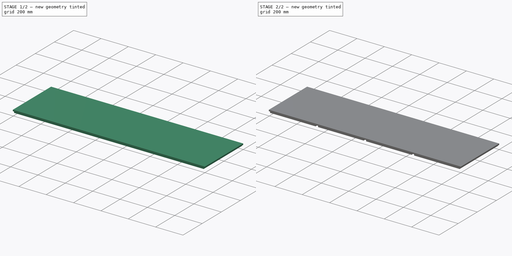
[diagram: build sequence overview — one tinted view per stage of 2, left to right]
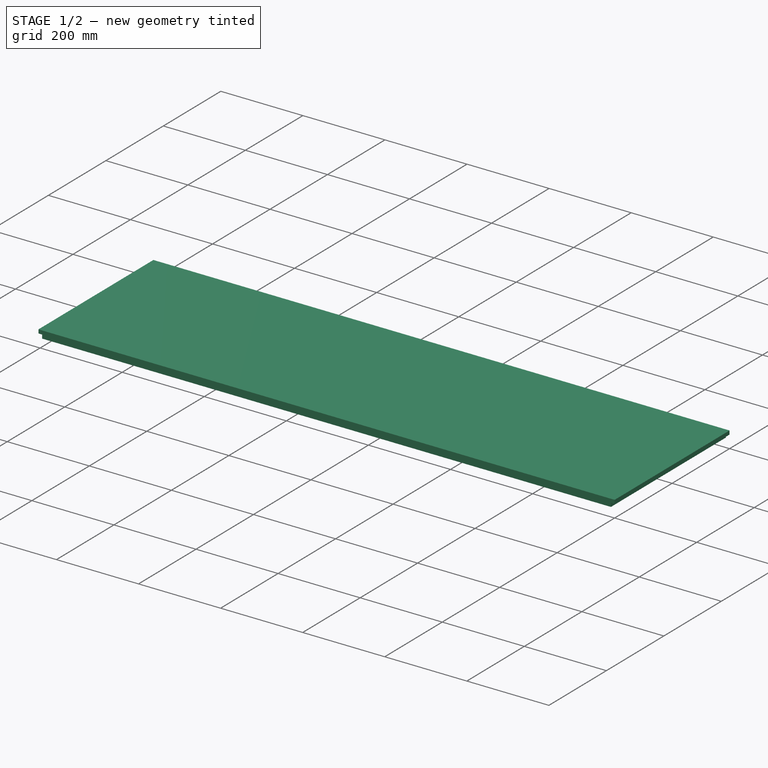
[diagram: stage 1 of 2 — iso view after this stage's code; geometry added in this stage tinted green]
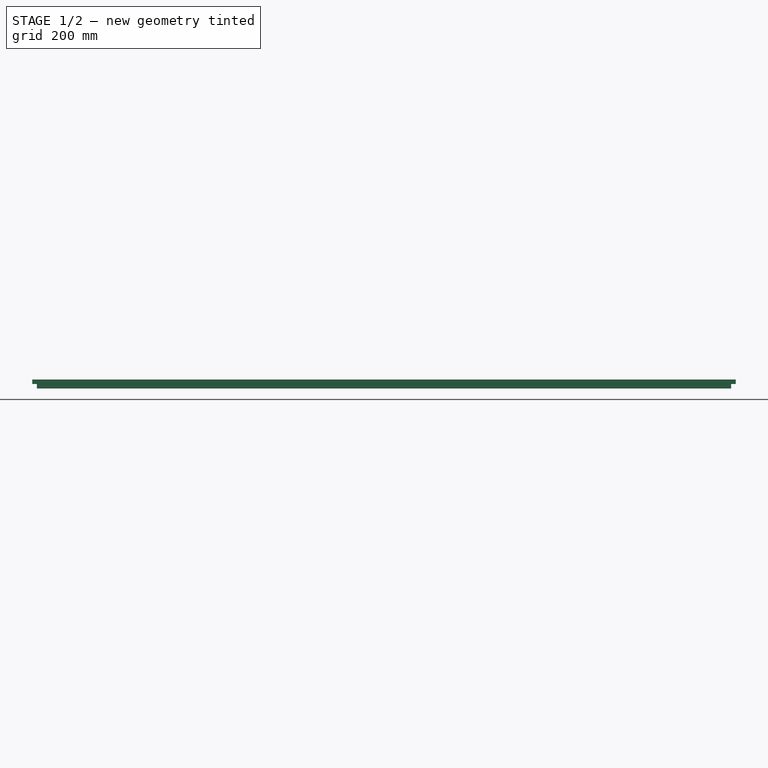
[diagram: stage 1 of 2 — front view after this stage's code; geometry added in this stage tinted green]
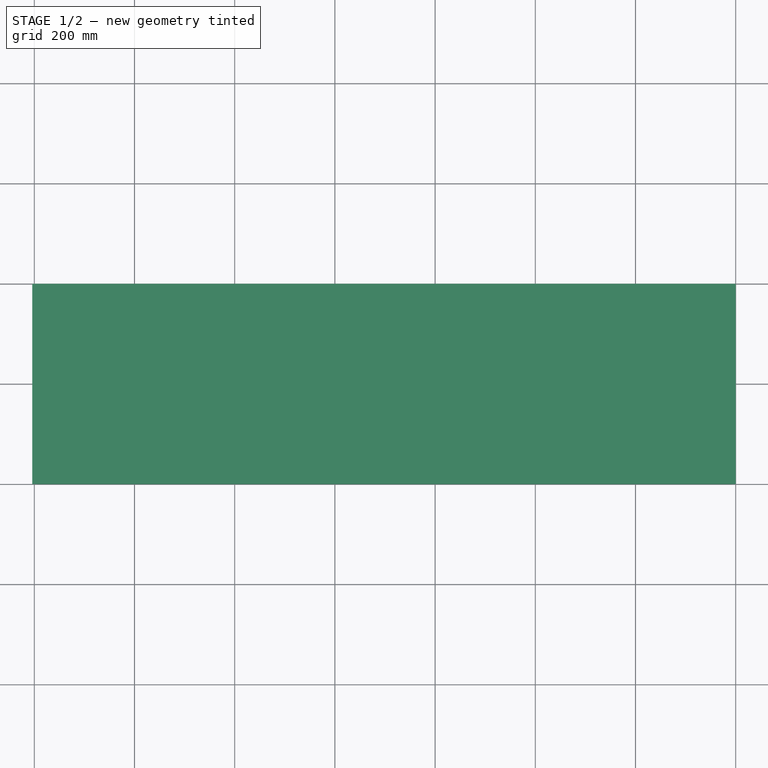
[diagram: stage 1 of 2 — top view after this stage's code; geometry added in this stage tinted green]
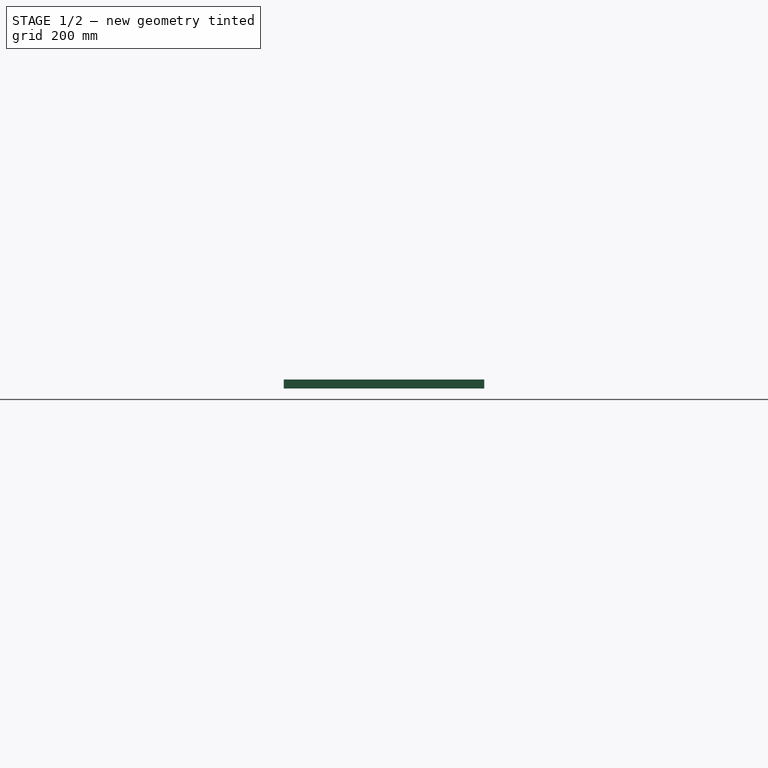
[diagram: stage 1 of 2 — right view after this stage's code; geometry added in this stage tinted green]
FCSTD DOCUMENT  (FreeCAD 0.18R4 (GitTag))
Label: vertical
License: All rights reserved
LicenseURL: http://en.wikipedia.org/wiki/All_rights_reserved
objects: Sketcher::SketchObject×3, PartDesign::Pocket×2, PartDesign::Pad×1, PartDesign::Body×1
note: 10 computed .brp shape members not serialized (recipe doc carries the construction recipe); baked Part::Feature solids carry a one-line shape summary decoded from their .brp

FEATURE [Sketcher::SketchObject] Sketch
  MapMode = 5
  Support = -> [XY_Plane]
  sketch-geometry (4):
    g0: LineSegment StartX=0 StartY=0 StartZ=0 EndX=-1404 EndY=0 EndZ=0
    g1: LineSegment StartX=-1404 StartY=0 StartZ=0 EndX=-1404 EndY=400 EndZ=0
    g2: LineSegment StartX=-1404 StartY=400 StartZ=0 EndX=0 EndY=400 EndZ=0
    g3: LineSegment StartX=0 StartY=400 StartZ=0 EndX=0 EndY=0 EndZ=0
  constraints (11):
    c: Coincident(g0,g1)
    c: Coincident(g1,g2)
    c: Coincident(g2,g3)
    c: Coincident(g3,g0)
    c: Horizontal(g0)
    c: Horizontal(g2)
    c: Vertical(g1)
    c: Vertical(g3)
    c: Coincident(g0,g-1)
    c: DistanceY(g3,g3) = 400
    c: DistanceX(g0,g0) = 1404
FEATURE [PartDesign::Pad] Pad
  Length = 18
  Length2 = 100
  Profile = -> Sketch
  Type = 0
FEATURE [Sketcher::SketchObject] Sketch001
  MapMode = 5
  Support = -> [XY_Plane]
  sketch-geometry (8):
    g0: LineSegment StartX=0 StartY=0 StartZ=0 EndX=-9 EndY=0 EndZ=0
    g1: LineSegment StartX=-9 StartY=0 StartZ=0 EndX=-9 EndY=400 EndZ=0
    g2: LineSegment StartX=-9 StartY=400 StartZ=0 EndX=0 EndY=400 EndZ=0
    g3: LineSegment StartX=0 StartY=400 StartZ=0 EndX=0 EndY=0 EndZ=0
    g4: LineSegment StartX=-1395 StartY=0 StartZ=0 EndX=-1404 EndY=0 EndZ=0
    g5: LineSegment StartX=-1404 StartY=0 StartZ=0 EndX=-1404 EndY=400 EndZ=0
    g6: LineSegment StartX=-1404 StartY=400 StartZ=0 EndX=-1395 EndY=400 EndZ=0
    g7: LineSegment StartX=-1395 StartY=400 StartZ=0 EndX=-1395 EndY=0 EndZ=0
  constraints (23):
    c: Coincident(g0,g1)
    c: Coincident(g1,g2)
    c: Coincident(g2,g3)
    c: Coincident(g3,g0)
    c: Horizontal(g0)
    c: Horizontal(g2)
    c: Vertical(g1)
    c: Vertical(g3)
    c: Coincident(g4,g5)
    c: Coincident(g5,g6)
    c: Coincident(g6,g7)
    c: Coincident(g7,g4)
    c: Horizontal(g4)
    c: Horizontal(g6)
    c: Vertical(g5)
    c: Vertical(g7)
    c: Coincident(g0,g-1)
    c: DistanceX(g0,g0) = 9
    c: DistanceY(g3,g3) = 400
    c: PointOnObject(g4,g-1)
    c: DistanceX(g4,g4) = 9
    c: DistanceY(g5,g5) = 400
    c: DistanceX(g4,g0) = 1404
FEATURE [PartDesign::Pocket] Pocket
  BaseFeature = -> Pad
  Length = 9
  Length2 = 100
  Profile = -> Sketch001
  Reversed = true
  Type = 0
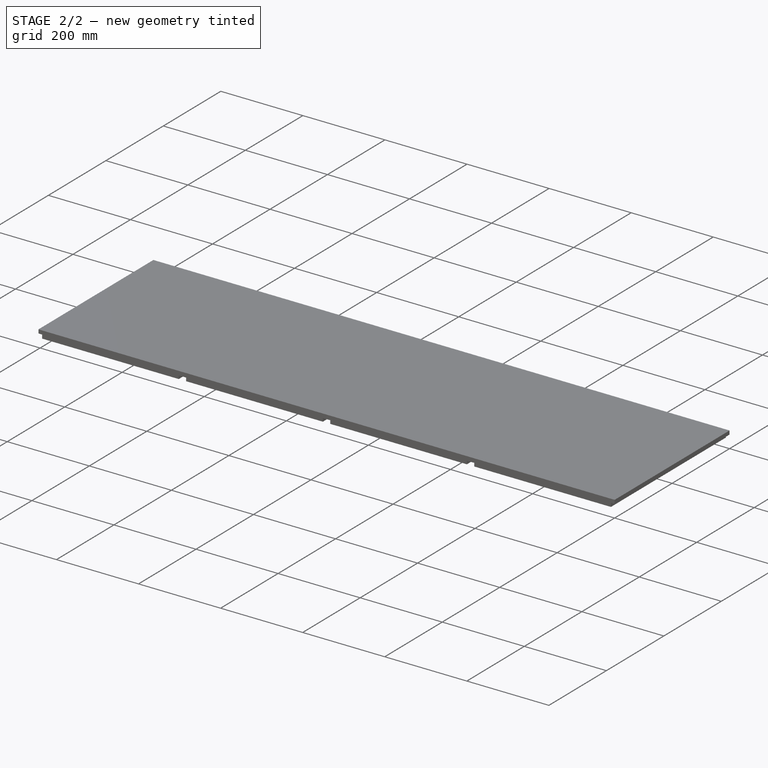
[diagram: stage 2 of 2 — iso view after this stage's code; geometry added in this stage tinted green]
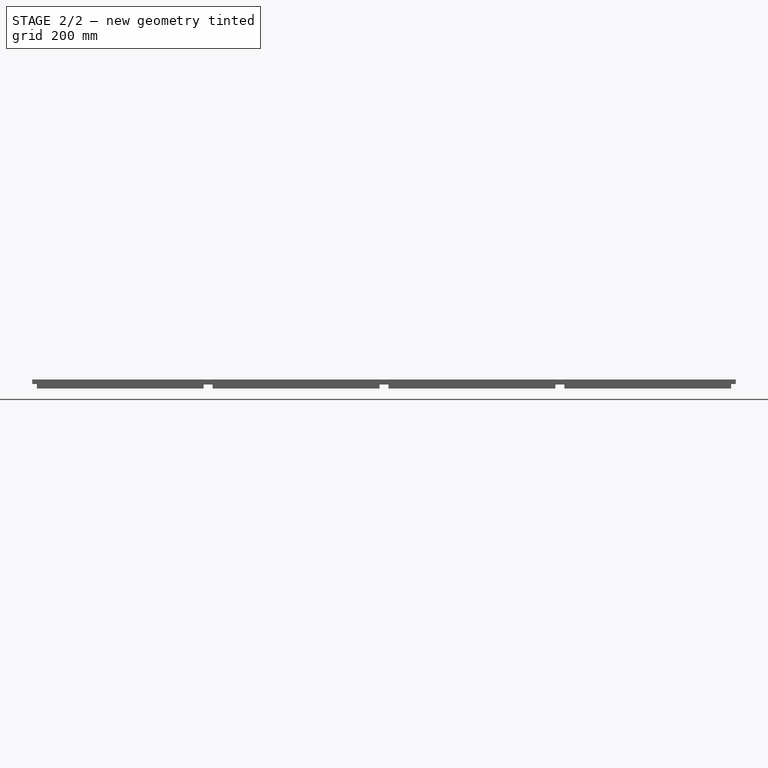
[diagram: stage 2 of 2 — front view after this stage's code; geometry added in this stage tinted green]
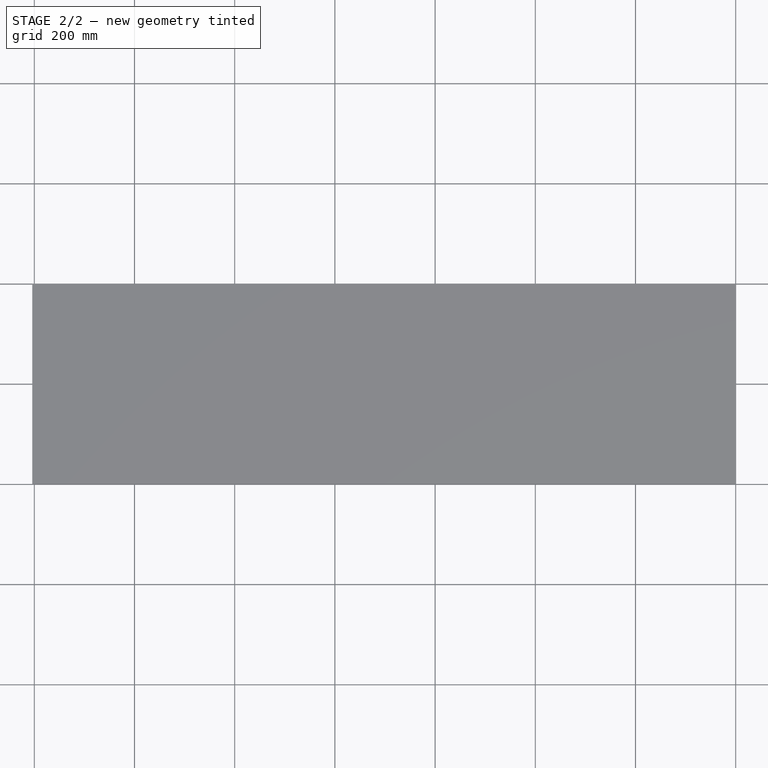
[diagram: stage 2 of 2 — top view after this stage's code; geometry added in this stage tinted green]
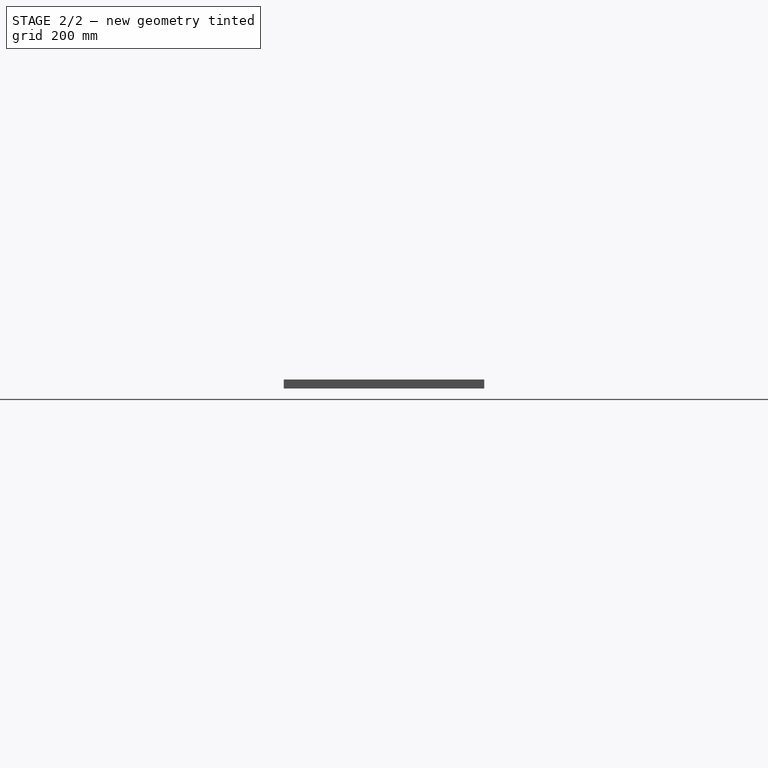
[diagram: stage 2 of 2 — right view after this stage's code; geometry added in this stage tinted green]
FEATURE [Sketcher::SketchObject] Sketch002
  MapMode = 5
  Placement = pos=(0,0,0) rot=(1,0,0;3.14159rad)
  Support = -> [Pocket]
  sketch-geometry (12):
    g0: LineSegment StartX=-342 StartY=0 StartZ=0 EndX=-360 EndY=0 EndZ=0
    g1: LineSegment StartX=-360 StartY=0 StartZ=0 EndX=-360 EndY=-400 EndZ=0
    g2: LineSegment StartX=-360 StartY=-400 StartZ=0 EndX=-342 EndY=-400 EndZ=0
    g3: LineSegment StartX=-342 StartY=-400 StartZ=0 EndX=-342 EndY=0 EndZ=0
    g4: LineSegment StartX=-693 StartY=0 StartZ=0 EndX=-711 EndY=0 EndZ=0
    g5: LineSegment StartX=-711 StartY=0 StartZ=0 EndX=-711 EndY=-400 EndZ=0
    g6: LineSegment StartX=-711 StartY=-400 StartZ=0 EndX=-693 EndY=-400 EndZ=0
    g7: LineSegment StartX=-693 StartY=-400 StartZ=0 EndX=-693 EndY=0 EndZ=0
    g8: LineSegment StartX=-1044 StartY=0 StartZ=0 EndX=-1062 EndY=0 EndZ=0
    g9: LineSegment StartX=-1062 StartY=0 StartZ=0 EndX=-1062 EndY=-400 EndZ=0
    g10: LineSegment StartX=-1062 StartY=-400 StartZ=0 EndX=-1044 EndY=-400 EndZ=0
    g11: LineSegment StartX=-1044 StartY=-400 StartZ=0 EndX=-1044 EndY=0 EndZ=0
  constraints (36):
    c: Coincident(g0,g1)
    c: Coincident(g1,g2)
    c: Coincident(g2,g3)
    c: Coincident(g3,g0)
    c: Horizontal(g0)
    c: Horizontal(g2)
    c: Vertical(g1)
    c: Vertical(g3)
    c: Coincident(g4,g5)
    c: Coincident(g5,g6)
    c: Coincident(g6,g7)
    c: Coincident(g7,g4)
    c: Horizontal(g4)
    c: Horizontal(g6)
    c: Vertical(g5)
    c: Vertical(g7)
    c: Coincident(g8,g9)
    c: Coincident(g9,g10)
    c: Coincident(g10,g11)
    c: Coincident(g11,g8)
    c: Horizontal(g8)
    c: Horizontal(g10)
    c: Vertical(g9)
    c: Vertical(g11)
    c: PointOnObject(g0,g-1)
    c: PointOnObject(g4,g-1)
    c: PointOnObject(g8,g-1)
    c: DistanceY(g3,g3) = 400
    c: DistanceY(g7,g7) = 400
    c: DistanceY(g11,g11) = 400
    c: DistanceX(g0,g0) = 18
    c: DistanceX(g4,g4) = 18
    c: DistanceX(g8,g8) = 18
    c: DistanceX(g8,g4) = 333
    c: DistanceX(g4,g0) = 333
    c: DistanceX(g0,g-1) = 342
FEATURE [PartDesign::Pocket] Pocket001
  BaseFeature = -> Pocket
  Length = 8
  Length2 = 100
  Profile = -> Sketch002
  Type = 0
FEATURE [PartDesign::Body] Body
  Group = -> [Sketch,Pad,Sketch001,Pocket,Sketch002,Pocket001]
  Origin = -> Origin
  Tip = -> Pocket001
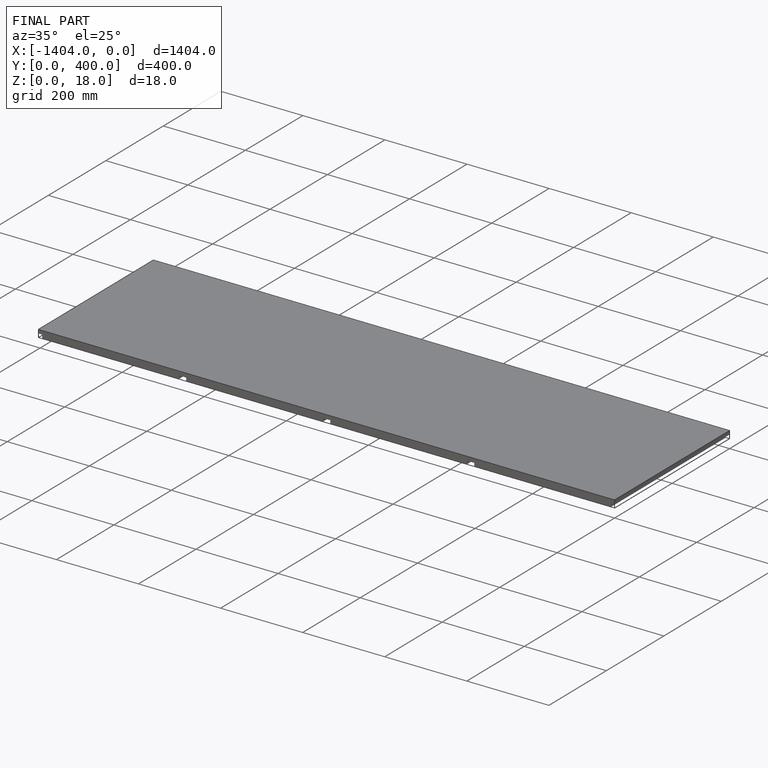
[diagram: finished part — iso view with bounding-box wireframe]
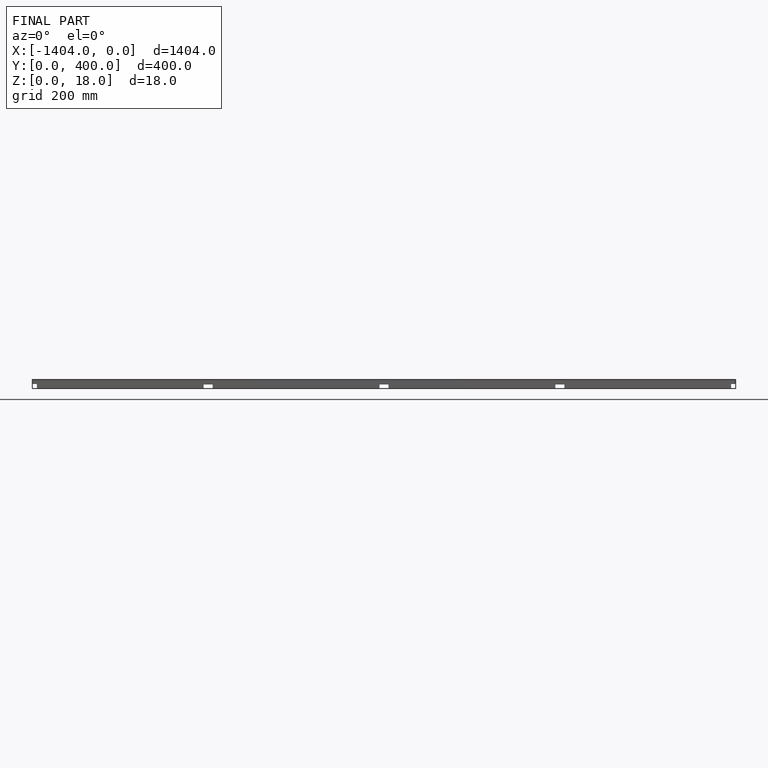
[diagram: finished part — front view with bounding-box wireframe]
